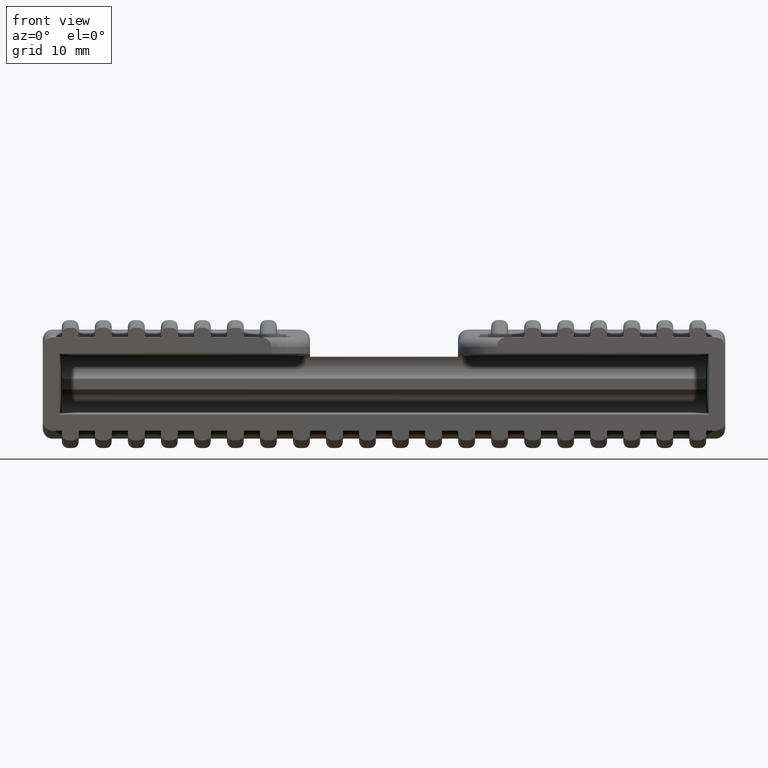
[diagram: clean part render]
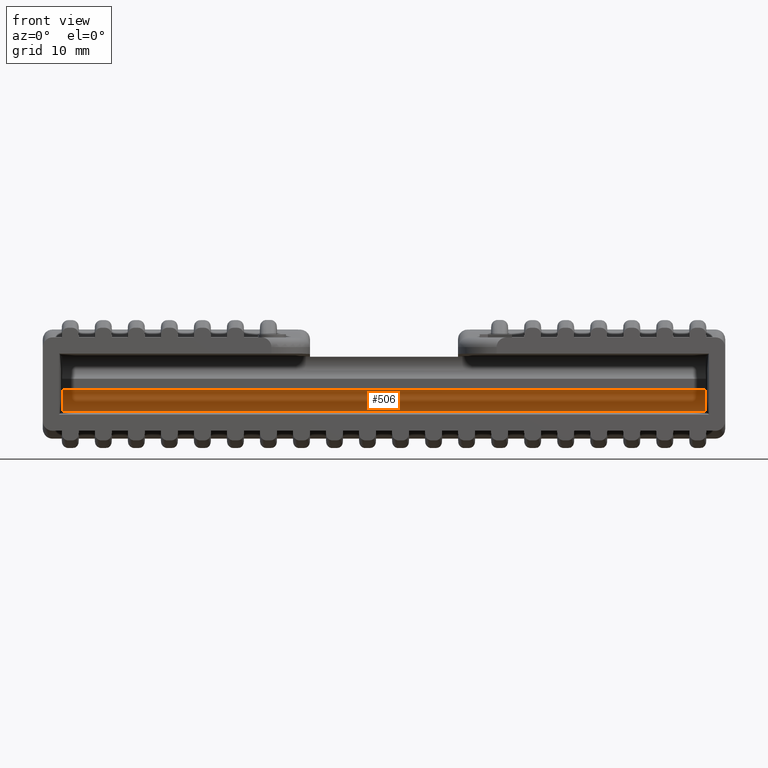
[diagram: same view with one face highlighted and labeled with its STEP entity id]
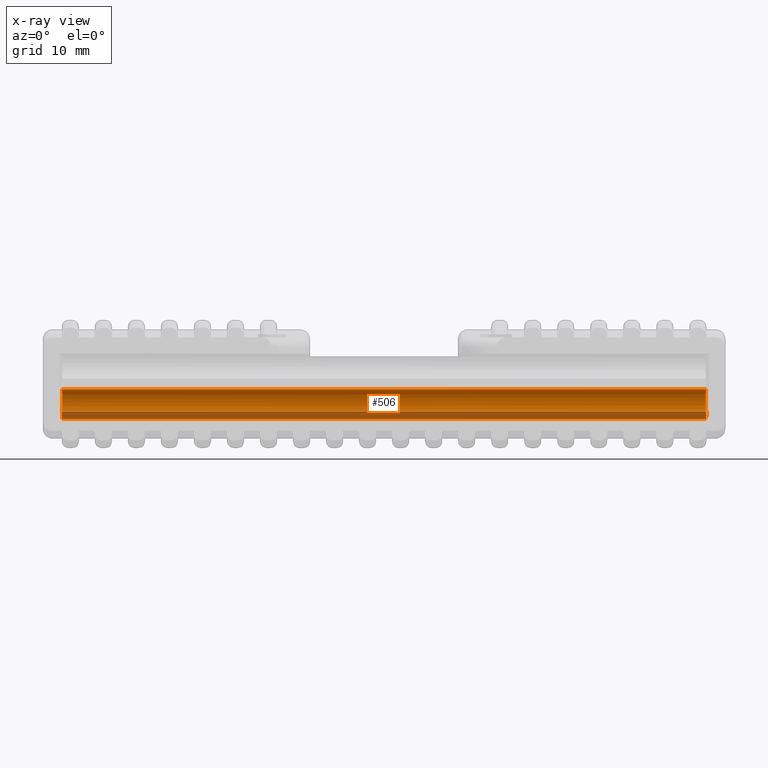
[diagram: x-ray of the same camera — body ghosted, the highlighted face saturated]
A machine part, front view. The second image highlights one B-rep face of the part: STEP entity #506.
The next image is the same camera in x-ray: the body ghosted, the highlighted face saturated — about 20% of this face is hidden behind the body in this view.
In plain terms, the highlighted cylindrical surface (edge-blend (fillet) strip) has radius 2.5 mm, axis along (1, 0, 0).
Its self-contained STEP definition (entity closure, byte-faithful):
#506 = ADVANCED_FACE( '', ( #1498 ), #1499, .F. );
#1498 = FACE_OUTER_BOUND( '', #2608, .T. );
#1499 = CYLINDRICAL_SURFACE( '', #2609, 2.50000000000000 );
#2608 = EDGE_LOOP( '', ( #6592, #6593, #6594, #6595 ) );
#2609 = AXIS2_PLACEMENT_3D( '', #6596, #6597, #6598 );
#6592 = ORIENTED_EDGE( '', *, *, #8846, .F. );
#6593 = ORIENTED_EDGE( '', *, *, #8859, .T. );
#6594 = ORIENTED_EDGE( '', *, *, #8849, .F. );
#6595 = ORIENTED_EDGE( '', *, *, #8847, .T. );
#6596 = CARTESIAN_POINT( '', ( 85.0000000000000, 28.7272077938642, -2.97720779386420 ) );
#6597 = DIRECTION( '', ( 1.00000000000000, 3.31166777813623E-032, 1.80284751248131E-016 ) );
#6598 = DIRECTION( '', ( -1.80284751248131E-016, 1.83690953073357E-016, 1.00000000000000 ) );
#8846 = EDGE_CURVE( '', #11239, #11237, #11241, .F. );
#8847 = EDGE_CURVE( '', #11242, #11237, #11243, .T. );
#8849 = EDGE_CURVE( '', #11242, #11245, #11246, .F. );
#8859 = EDGE_CURVE( '', #11239, #11245, #11260, .F. );
#11237 = VERTEX_POINT( '', #17045 );
#11239 = VERTEX_POINT( '', #17048 );
#11241 = ELLIPSE( '', #17051, 2.50038082010977, 2.50000000000000 );
#11242 = VERTEX_POINT( '', #17052 );
#11243 = LINE( '', #17053, #17054 );
#11245 = VERTEX_POINT( '', #17057 );
#11246 = ELLIPSE( '', #17058, 2.50038082010977, 2.50000000000000 );
#11260 = LINE( '', #17079, #17080 );
#17045 = CARTESIAN_POINT( '', ( -50.0000000000000, 30.0000000000000, -0.825464314729241 ) );
#17048 = CARTESIAN_POINT( '', ( -50.0591453443919, 26.6115654891505, -4.30914534439190 ) );
#17051 = AXIS2_PLACEMENT_3D( '', #19023, #19024, #19025 );
#17052 = CARTESIAN_POINT( '', ( 50.0000000000000, 30.0000000000000, -0.825464314729199 ) );
#17053 = CARTESIAN_POINT( '', ( 85.0000000000000, 30.0000000000000, -0.825464314729196 ) );
#17054 = VECTOR( '', #19026, 1000.00000000000 );
#17057 = CARTESIAN_POINT( '', ( 50.0591453443919, 26.6115654891505, -4.30914534439188 ) );
#17058 = AXIS2_PLACEMENT_3D( '', #19028, #19029, #19030 );
#17079 = CARTESIAN_POINT( '', ( 85.0000000000000, 26.6115654891505, -4.30914534439188 ) );
#17080 = VECTOR( '', #19044, 1000.00000000000 );
#19023 = CARTESIAN_POINT( '', ( -50.0222166705982, 28.7272077938642, -2.97720779386423 ) );
#19024 = DIRECTION( '', ( -0.999847695156391, 0.0174524064372835, -1.25647833206206E-016 ) );
#19025 = DIRECTION( '', ( -0.0174524064372835, -0.999847695156391, -3.13172025943369E-015 ) );
#19026 = DIRECTION( '', ( -1.00000000000000, -3.31166777813623E-032, -1.80284751248131E-016 ) );
#19028 = CARTESIAN_POINT( '', ( 50.0222166705983, 28.7272077938642, -2.97720779386421 ) );
#19029 = DIRECTION( '', ( 0.999847695156391, 0.0174524064372836, 1.19236134862429E-016 ) );
#19030 = DIRECTION( '', ( -0.0174524064372836, 0.999847695156391, -3.49904621153663E-015 ) );
#19044 = DIRECTION( '', ( -1.00000000000000, -3.31166777813623E-032, -1.80284751248131E-016 ) );